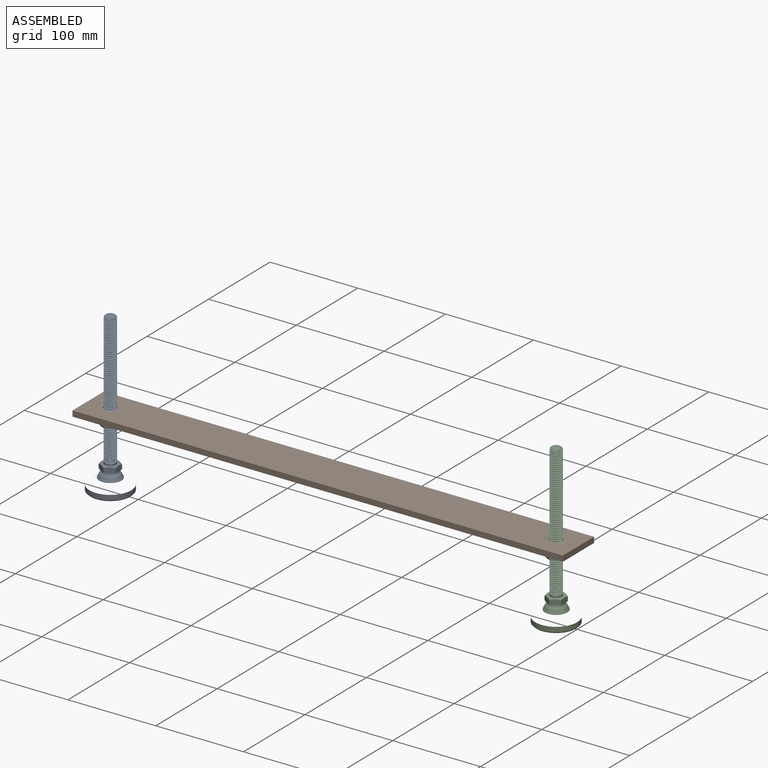
[diagram: assembled view]
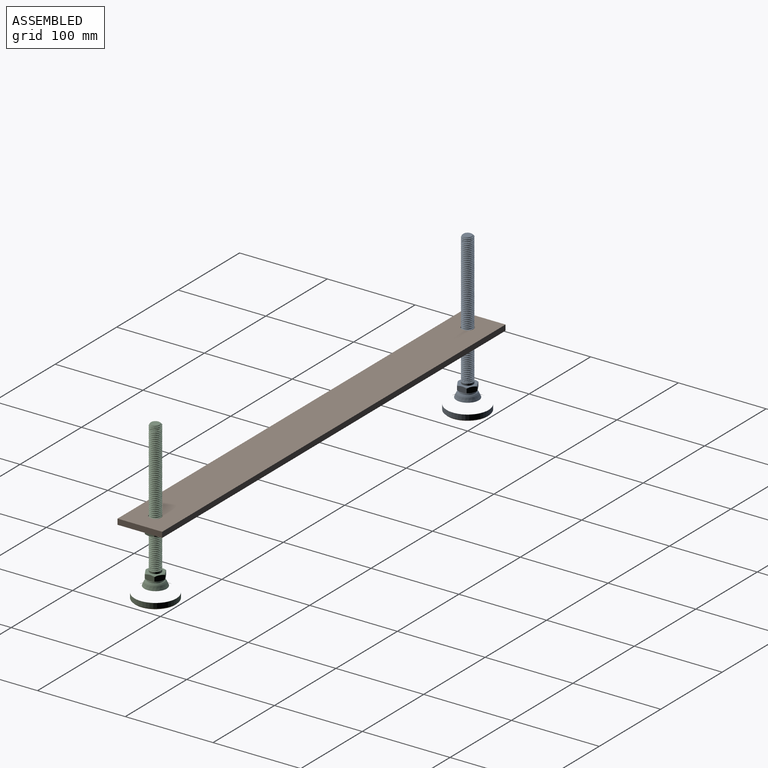
[diagram: assembled view, second angle]
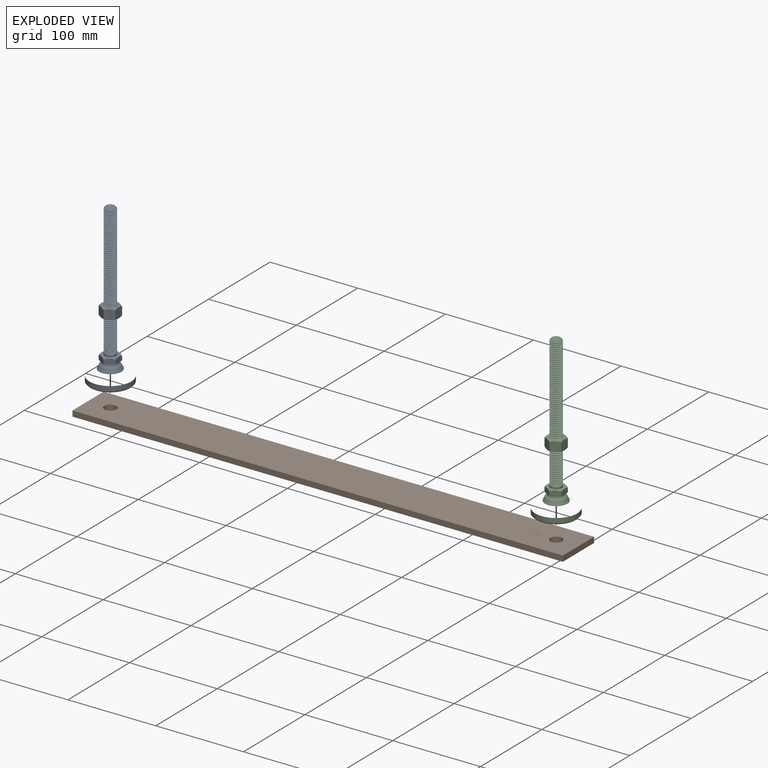
[diagram: exploded view]
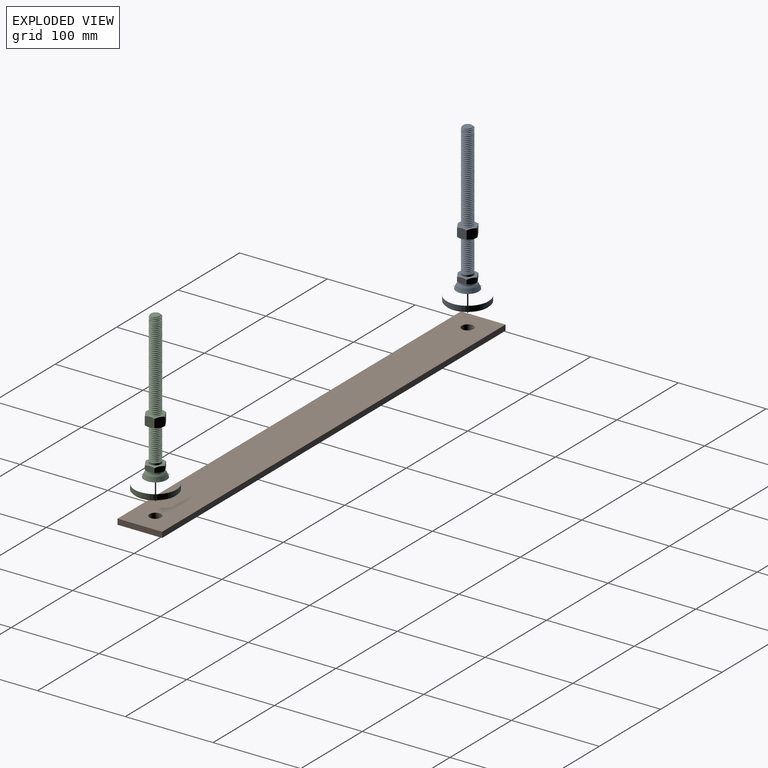
[diagram: exploded view, second angle]
ASSEMBLY  parts=3 mates=4
PART A: 79 faces, bbox 48.5x48.5x185.7 mm
  f0: plane 45.09x45.09mm, normal (0,0,-1), area 1596.4mm2, adj f6
  f1: plane 19.05x19.05mm, normal (0,0,1), area 44.7mm2, adj f2,f7
  f2: cone r=9.53mm half-angle=36.9deg, axis (0,0,-1), area 126.2mm2, adj f1,f3
  f3: cone r=10.72mm half-angle=24.1deg, axis (0,0,-1), area 358.1mm2, adj f2,f4
  f4: cone r=12.7mm half-angle=57.8deg, axis (0,0,-1), area 1505.6mm2, adj f3,f5
  f5: cylinder r=23.81mm len=47.63mm, axis (0,0,-1), area 855.1mm2, adj f4,f6
  f6: cone r=23.81mm half-angle=45deg, axis (0,0,1), area 261.6mm2, adj f0,f5
  f7: sphere r=8.89mm, area 124.1mm2, adj f1,f59
  f8: plane 19.05x19.05mm, normal (0,0,-1), area 148.4mm2, adj f16,f17,f18,f19,f20,f21,f28
  f9: plane 19.05x19.05mm, normal (0,0,1), area 148.4mm2, adj f10,f11,f12,f13,f14,f15,f29
  f10: cone r=11mm half-angle=60deg, axis (0,0,-1), area 8.9mm2, adj f9,f22,f27
  f11: cone r=11mm half-angle=60deg, axis (0,0,-1), area 8.9mm2, adj f9,f26,f27
  f12: cone r=11mm half-angle=60deg, axis (0,0,-1), area 8.9mm2, adj f9,f25,f26
  f13: cone r=11mm half-angle=60deg, axis (0,0,-1), area 8.9mm2, adj f9,f24,f25
  f14: cone r=11mm half-angle=60deg, axis (0,0,-1), area 8.9mm2, adj f9,f23,f24
  f15: cone r=11mm half-angle=60deg, axis (0,0,-1), area 8.9mm2, adj f9,f22,f23
  f16: cone r=9.53mm half-angle=60deg, axis (0,0,1), area 8.9mm2, adj f8,f22,f27
  f17: cone r=9.53mm half-angle=60deg, axis (0,0,1), area 8.9mm2, adj f8,f26,f27
  f18: cone r=9.53mm half-angle=60deg, axis (0,0,1), area 8.9mm2, adj f8,f25,f26
  f19: cone r=9.53mm half-angle=60deg, axis (0,0,1), area 8.9mm2, adj f8,f24,f25
  f20: cone r=9.53mm half-angle=60deg, axis (0,0,1), area 8.9mm2, adj f8,f23,f24
  f21: cone r=9.53mm half-angle=60deg, axis (0,0,1), area 8.9mm2, adj f8,f22,f23
  f22: plane 12.02x10.43mm, normal (0.5,-0.87,0), area 115.8mm2, adj f10,f15,f16,f21,f23,f27
  f23: plane 12.02x11.91mm, normal (1,0,0), area 115.8mm2, adj f14,f15,f20,f21,f22,f24
  f24: plane 12.02x10.43mm, normal (0.5,0.87,0), area 115.8mm2, adj f13,f14,f19,f20,f23,f25
  f25: plane 12.02x10.43mm, normal (-0.5,0.87,0), area 115.8mm2, adj f12,f13,f18,f19,f24,f26
  f26: plane 12.02x11.91mm, normal (-1,0,0), area 115.8mm2, adj f11,f12,f17,f18,f25,f27
  f27: plane 12.02x10.43mm, normal (-0.5,-0.87,0), area 115.8mm2, adj f10,f11,f16,f17,f22,f26
  f28: cone r=6.59mm half-angle=45deg, axis (0,0,-1), area 14mm2, adj f8,f30,f51
  f29: cone r=6.35mm half-angle=45deg, axis (0,0,1), area 14mm2, adj f9,f30,f56
  f30: cylinder r=6.35mm len=12.7mm, axis (0,0,1), area 376.5mm2, adj f28,f29,f52,f54
  f31: cylinder r=6.35mm len=12.7mm, axis (0,0,-1), area 78.6mm2, adj f32,f52,f55,f78
  f32: cylinder r=6.35mm len=12.7mm, axis (0,0,-1), area 9.7mm2, adj f31,f33,f52,f54
  f33: cylinder r=6.35mm len=12.7mm, axis (0,0,-1), area 9.7mm2, adj f32,f34,f52,f54
  f34: cylinder r=6.35mm len=12.7mm, axis (0,0,-1), area 9.7mm2, adj f33,f35,f52,f54
  f35: cylinder r=6.35mm len=12.7mm, axis (0,0,-1), area 17.7mm2, adj f34,f36,f52,f54
  f36: cylinder r=6.35mm len=12.7mm, axis (0,0,-1), area 9.7mm2, adj f35,f37,f52,f54
  f37: cylinder r=6.35mm len=12.7mm, axis (0,0,-1), area 9.8mm2, adj f36,f38,f52,f54
  f38: cylinder r=6.35mm len=12.7mm, axis (0,0,-1), area 17.7mm2, adj f37,f39,f52,f54
  f39: cylinder r=6.35mm len=12.7mm, axis (0,0,-1), area 9.7mm2, adj f38,f40,f52,f54
  f40: cylinder r=6.35mm len=12.7mm, axis (0,0,-1), area 9.7mm2, adj f39,f41,f52,f54
  f41: cylinder r=6.35mm len=12.7mm, axis (0,0,-1), area 17.7mm2, adj f40,f42,f52,f54
  f42: cylinder r=6.35mm len=12.7mm, axis (0,0,-1), area 9.7mm2, adj f41,f43,f52,f54
  f43: cylinder r=6.35mm len=12.7mm, axis (0,0,-1), area 9.7mm2, adj f42,f44,f52,f54
  f44: cylinder r=6.35mm len=12.7mm, axis (0,0,-1), area 17.7mm2, adj f43,f45,f52,f54
  f45: cylinder r=6.35mm len=12.7mm, axis (0,0,-1), area 9.8mm2, adj f44,f46,f52,f54
  f46: cylinder r=6.35mm len=12.7mm, axis (0,0,-1), area 9.8mm2, adj f45,f47,f52,f54
  f47: cylinder r=6.35mm len=12.7mm, axis (0,0,-1), area 17.7mm2, adj f46,f48,f52,f54
  f48: cylinder r=6.35mm len=12.7mm, axis (0,0,-1), area 9.7mm2, adj f47,f49,f52,f54
  f49: cylinder r=6.35mm len=12.7mm, axis (0,0,-1), area 9.7mm2, adj f48,f50,f52,f54
  f50: cylinder r=6.35mm len=12.7mm, axis (0,0,-1), area 15.1mm2, adj f49,f51,f52,f54
  f51: cylinder r=6.35mm len=10.88mm, axis (0,0,-1), area 3.7mm2, adj f28,f50,f52,f54
  f52: bspline ~154.5x14.91mm, area 4037.4mm2, adj f30,f31,f32,f33,f34,f35,f36,f37
  f53: cylinder r=5.08mm len=148.97mm, axis (0,0,-1), area -3472.8mm2, adj f52,f54,f57,f78
  f54: bspline ~157.73x16.07mm, area 4893mm2, adj f30,f32,f33,f34,f35,f36,f37,f38
  f55: plane 19.05x19.05mm, normal (0,0,1), area 158.3mm2, adj f31,f72,f73,f74,f75,f76,f77
  f56: cylinder r=6.35mm len=100.36mm, axis (0,0,-1), area 496.4mm2, adj f29,f52,f54,f57
  f57: cone r=4.87mm half-angle=45deg, axis (0,0,-1), area 40.7mm2, adj f52,f53,f54,f56,f58
  f58: plane 9.74x9.74mm, normal (0,0,1), area 74.5mm2, adj f57
  f59: plane 19.05x19.05mm, normal (0,0,-1), area 82.3mm2, adj f7,f60,f61,f62,f63,f64,f65
  f60: cone r=9.53mm half-angle=60deg, axis (0,0,1), area 8.9mm2, adj f59,f67,f68
  f61: cone r=9.53mm half-angle=60deg, axis (0,0,1), area 8.9mm2, adj f59,f68,f69
  f62: cone r=9.53mm half-angle=60deg, axis (0,0,1), area 8.9mm2, adj f59,f69,f70
  f63: cone r=9.53mm half-angle=60deg, axis (0,0,1), area 8.9mm2, adj f59,f70,f71
  f64: cone r=9.53mm half-angle=60deg, axis (0,0,1), area 8.9mm2, adj f59,f66,f71
  f65: cone r=9.53mm half-angle=60deg, axis (0,0,1), area 8.9mm2, adj f59,f66,f67
  f66: plane 11.91x7.26mm, normal (1,0,0), area 63.4mm2, adj f64,f65,f67,f71,f76,f77
  f67: plane 10.43x7.26mm, normal (0.5,-0.87,0), area 63.4mm2, adj f60,f65,f66,f68,f72,f77
  f68: plane 10.43x7.26mm, normal (-0.5,-0.87,0), area 63.4mm2, adj f60,f61,f67,f69,f72,f73
  f69: plane 11.91x7.26mm, normal (-1,0,0), area 63.4mm2, adj f61,f62,f68,f70,f73,f74
  f70: plane 10.43x7.26mm, normal (-0.5,0.87,0), area 63.4mm2, adj f62,f63,f69,f71,f74,f75
  f71: plane 10.43x7.26mm, normal (0.5,0.87,0), area 63.4mm2, adj f63,f64,f66,f70,f75,f76
  f72: cone r=11mm half-angle=60deg, axis (0,0,-1), area 8.9mm2, adj f55,f67,f68
  f73: cone r=11mm half-angle=60deg, axis (0,0,-1), area 8.9mm2, adj f55,f68,f69
  f74: cone r=11mm half-angle=60deg, axis (0,0,-1), area 8.9mm2, adj f55,f69,f70
  f75: cone r=11mm half-angle=60deg, axis (0,0,-1), area 8.9mm2, adj f55,f70,f71
  f76: cone r=11mm half-angle=60deg, axis (0,0,-1), area 8.9mm2, adj f55,f66,f71
  f77: cone r=11mm half-angle=60deg, axis (0,0,-1), area 8.9mm2, adj f55,f66,f67
  f78: cone r=6.35mm half-angle=45deg, axis (0,0,-1), area 33.1mm2, adj f31,f52,f53,f54
PART B: 8 faces, bbox 558.8x50.8x6.4 mm
  f0: plane 50.8x6.35mm, normal (-1,0,0), area 322.6mm2, adj f1,f3,f4,f5
  f1: plane 558.8x6.35mm, normal (0,-1,0), area 3548.4mm2, adj f0,f2,f4,f5
  f2: plane 50.8x6.35mm, normal (1,0,0), area 322.6mm2, adj f1,f3,f4,f5
  f3: plane 558.8x6.35mm, normal (0,1,0), area 3548.4mm2, adj f0,f2,f4,f5
  f4: plane 558.8x50.8mm, normal (0,0,1), area 28101.1mm2, adj f0,f1,f2,f3,f6,f7
  f5: plane 558.8x50.8mm, normal (0,0,-1), area 28101.1mm2, adj f0,f1,f2,f3,f6,f7
  f6: cylinder r=6.75mm len=13.49mm, axis (0,0,1), area 269.2mm2, adj f4,f5
  f7: cylinder r=6.75mm len=13.49mm, axis (0,0,1), area 269.2mm2, adj f4,f5
PART C: same geometry as A
PLACE A t=(-321.32,85.06,-116.62)mm
PLACE B t=(-346.72,59.66,-37.25)mm
PLACE C t=(186.68,85.06,-116.62)mm
MATE cylindrical A.f2 <-> B.f7  axis (0,0,1) through (-321.32,85.06,64.35)mm
MATE cylindrical C.f2 <-> B.f6  axis (0,0,1) through (186.68,85.06,64.35)mm
MATE planar C.f2 <-> B.f5  axis (0,0,1) through (186.68,85.06,-37.25)mm
MATE planar A.f2 <-> B.f5  axis (0,0,1) through (-321.32,85.06,-37.25)mm
